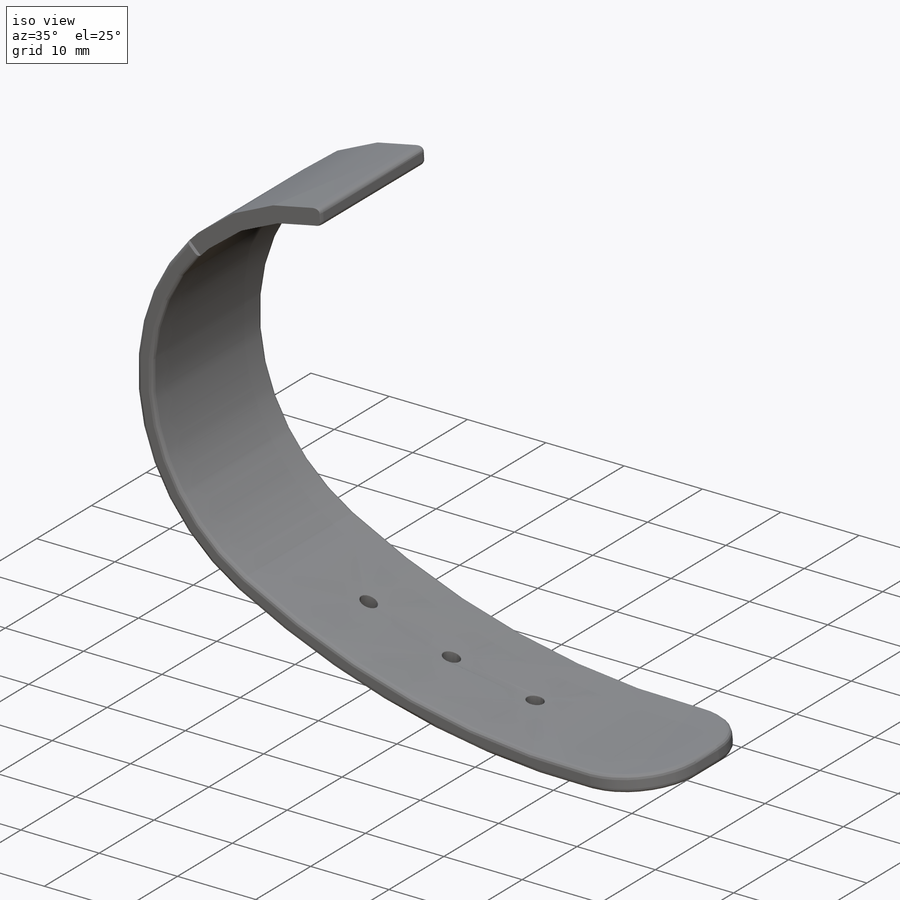
[diagram: iso view]
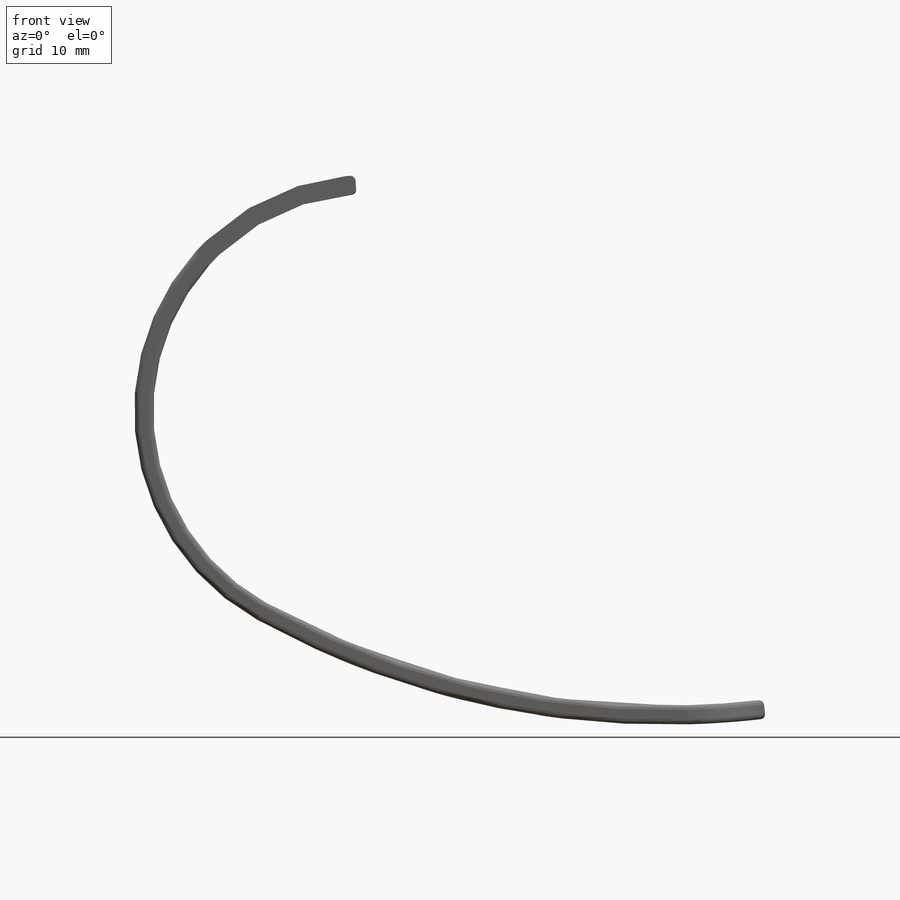
[diagram: front view]
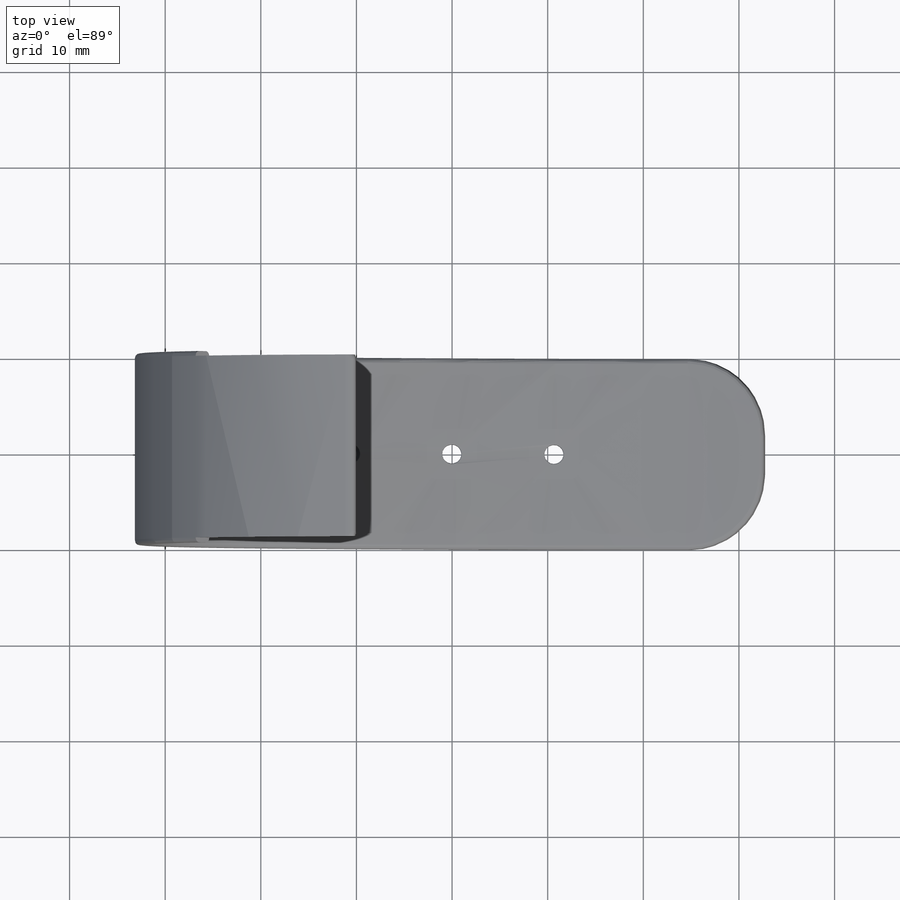
[diagram: top view]
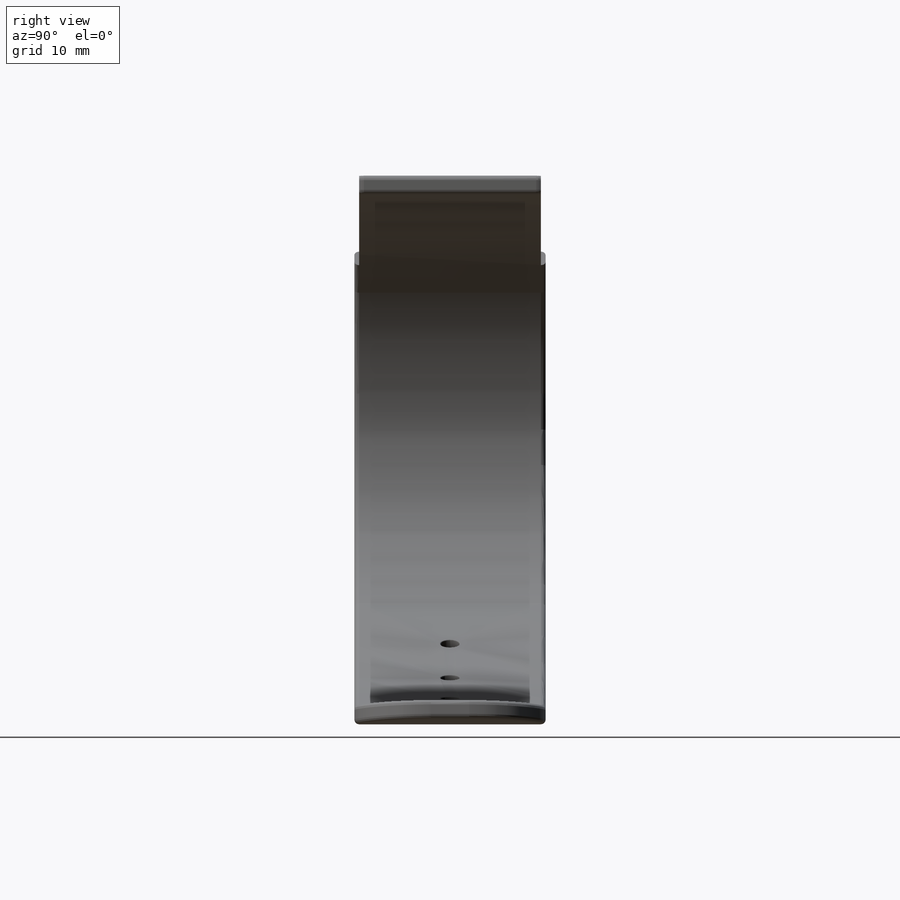
[diagram: right view]
SOLIDWORKS PART (.sldprt)
format: sldprt  version: not decoded by parser v0  size: 411,648 bytes
history: native  units: mm
features: sketch x6, plane x4, fillet x4, cut_extrude x4, material x1 (+8 scaffold rows collapsed)
feature tree (27):
  scaffold x8  (default folders/planes/origin — collapsed)
  material  "Matériau <non spécifié>"
  plane  "Face"
  plane  "Dessus"
  plane  "Droite"
  sketch  "Esquisse1"  dims[c1.D1=120.0mm c2.D1=20.0mm c2.D5=2.0mm c2.D6=10.0mm c2.D7=5.0mm]
  fillet  "Congé10"  Radius=8mm
  fillet  "Congé8"  Radius=1mm
  sketch  "Esquisse4"  dims[D1=2.0mm]
  cut_extrude  "Enlèv. mat.-Extru.4"  [1 undecoded]
  sketch  "Esquisse5"
  plane  "Plan1"
  sketch  "Esquisse6"  dims[D1=2.0mm]
  cut_extrude  "Enlèv. mat.-Extru.5"  [1 undecoded]
  fillet  "Congé11"  Radius=0.5mm
  sketch  "Esquisse7"
  cut_extrude  "Enlèv. mat.-Extru.6"  Depth=0.5mm
  sketch  "Esquisse8"  dims[D1=0.0mm]
  cut_extrude  "Enlèv. mat.-Extru.7"  Depth=0.5mm
  fillet  "Congé12"  Radius=0.1mm
decode coverage: 10 of 14 modeling features carry decoded parameters
note: 2 parameter values undecoded
note: suppression state not decoded; provenance and decode notes live in map.json
